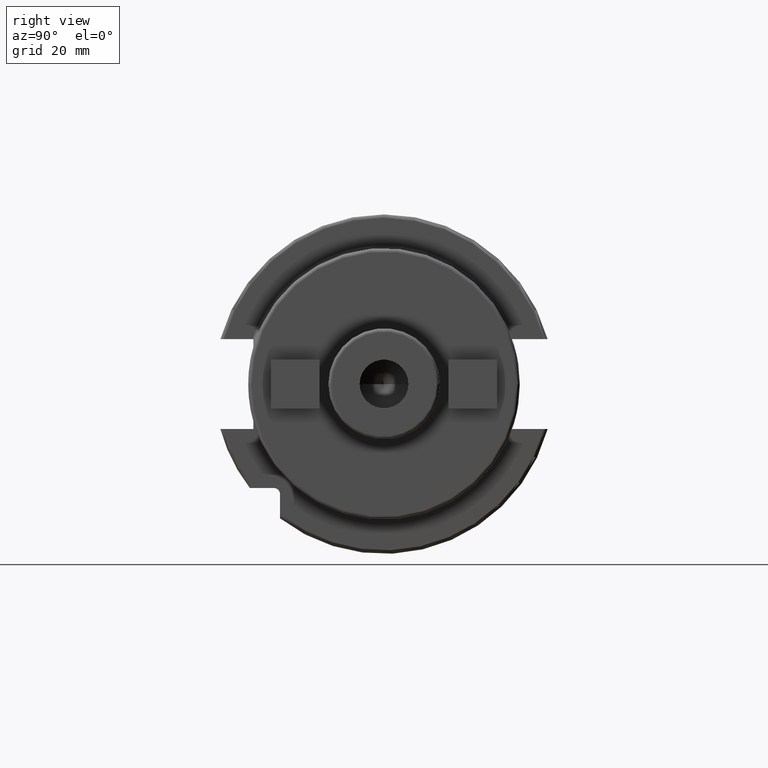
[diagram: clean part render]
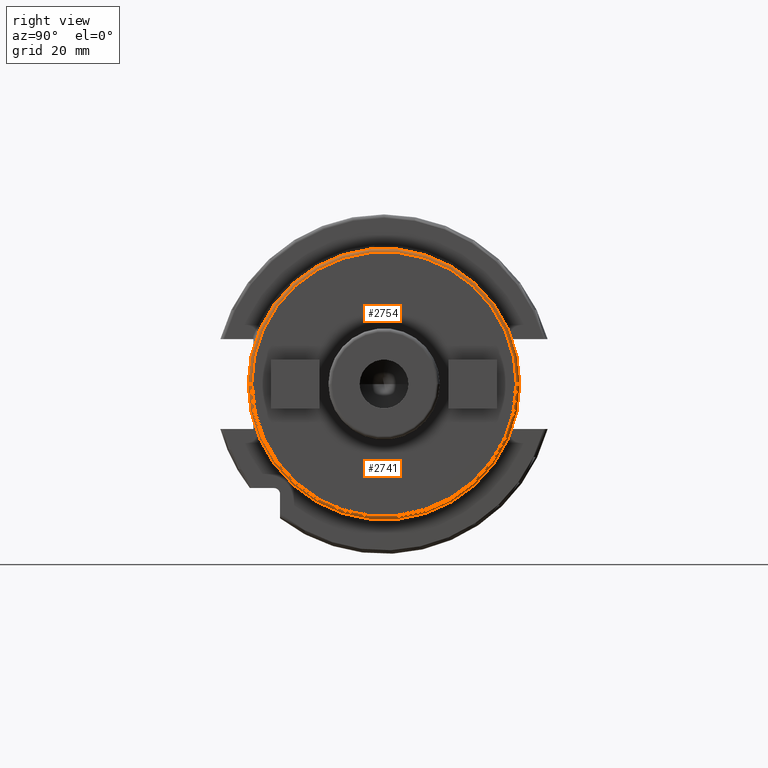
[diagram: same view with one multi-face feature highlighted, each face labeled with its STEP entity id]
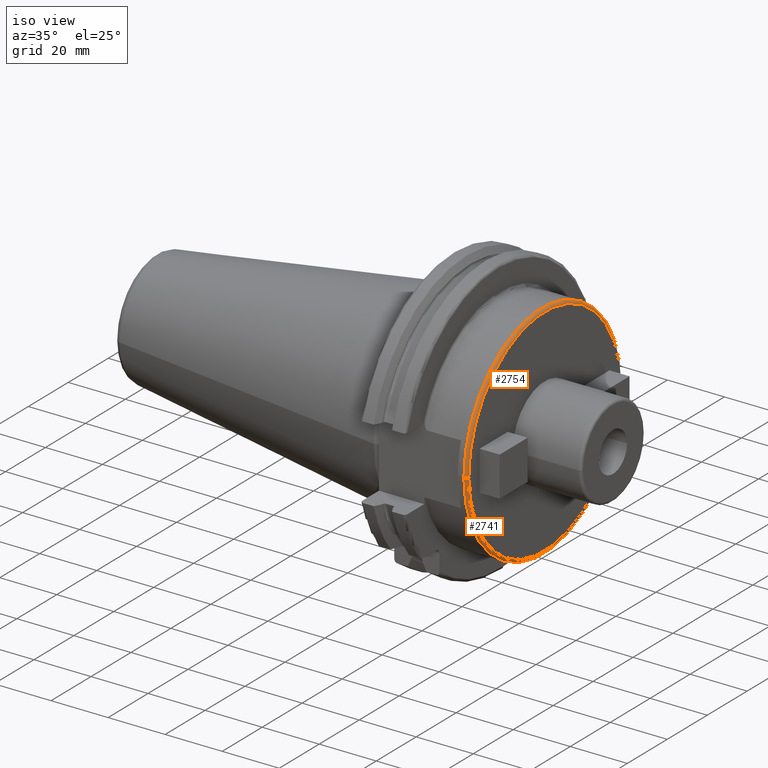
[diagram: same view with one multi-face feature highlighted, each face labeled with its STEP entity id]
A machine part, right view. The highlighted faces form ONE feature: a constant-radius fillet chain: 2 tangent blend faces with common blend radius 1 mm. The faces share edges in the B-rep.
A second angle (iso view) of the same feature is appended — it is thin or edge-on in the first view.
Their STEP definitions:
[1] entity #2754 (Torus):
#964=CARTESIAN_POINT('',(3.4E1,0.E0,0.E0));
#965=DIRECTION('',(-1.E0,0.E0,0.E0));
#966=DIRECTION('',(0.E0,-1.E0,0.E0));
#967=AXIS2_PLACEMENT_3D('',#964,#965,#966);
#1005=CARTESIAN_POINT('',(3.4E1,3.8E1,1.821318096340E-11));
#1006=DIRECTION('',(0.E0,4.792945554333E-13,-1.E0));
#1007=DIRECTION('',(0.E0,1.E0,4.792945554333E-13));
#1008=AXIS2_PLACEMENT_3D('',#1005,#1006,#1007);
#1010=CARTESIAN_POINT('',(3.4E1,-3.8E1,-1.820948947184E-11));
#1011=DIRECTION('',(0.E0,-4.791974109186E-13,1.E0));
#1012=DIRECTION('',(0.E0,-1.E0,-4.791974109186E-13));
#1013=AXIS2_PLACEMENT_3D('',#1010,#1011,#1012);
#1030=CARTESIAN_POINT('',(3.5E1,0.E0,0.E0));
#1031=DIRECTION('',(-1.E0,0.E0,0.E0));
#1032=DIRECTION('',(0.E0,-1.E0,0.E0));
#1033=AXIS2_PLACEMENT_3D('',#1030,#1031,#1032);
#1632=CARTESIAN_POINT('',(3.4E1,3.9E1,0.E0));
#1633=CARTESIAN_POINT('',(3.4E1,-3.9E1,0.E0));
#1634=VERTEX_POINT('',#1632);
#1635=VERTEX_POINT('',#1633);
#1636=CARTESIAN_POINT('',(3.5E1,3.8E1,0.E0));
#1637=CARTESIAN_POINT('',(3.5E1,-3.8E1,0.E0));
#1638=VERTEX_POINT('',#1636);
#1639=VERTEX_POINT('',#1637);
#2742=CARTESIAN_POINT('',(3.4E1,0.E0,0.E0));
#2743=DIRECTION('',(1.E0,0.E0,0.E0));
#2744=DIRECTION('',(0.E0,-9.999928138765E-1,-3.791067842024E-3));
#2745=AXIS2_PLACEMENT_3D('',#2742,#2743,#2744);
#2746=TOROIDAL_SURFACE('',#2745,3.8E1,1.E0);
#2747=ORIENTED_EDGE('',*,*,#2677,.T.);
#2748=ORIENTED_EDGE('',*,*,#2737,.T.);
#2750=ORIENTED_EDGE('',*,*,#2749,.F.);
#2751=ORIENTED_EDGE('',*,*,#2733,.F.);
#2752=EDGE_LOOP('',(#2747,#2748,#2750,#2751));
#2753=FACE_OUTER_BOUND('',#2752,.F.);
#2754=ADVANCED_FACE('',(#2753),#2746,.T.);
#968=CIRCLE('',#967,3.9E1);
#1009=CIRCLE('',#1008,1.E0);
#1014=CIRCLE('',#1013,1.E0);
#1034=CIRCLE('',#1033,3.8E1);
#2677=EDGE_CURVE('',#1635,#1634,#968,.T.);
#2733=EDGE_CURVE('',#1635,#1639,#1014,.T.);
#2737=EDGE_CURVE('',#1634,#1638,#1009,.T.);
#2749=EDGE_CURVE('',#1639,#1638,#1034,.T.);
[2] entity #2741 (Torus):
#987=CARTESIAN_POINT('',(3.4E1,0.E0,0.E0));
#988=DIRECTION('',(-1.E0,0.E0,0.E0));
#989=DIRECTION('',(0.E0,1.E0,0.E0));
#990=AXIS2_PLACEMENT_3D('',#987,#988,#989);
#1005=CARTESIAN_POINT('',(3.4E1,3.8E1,1.821318096340E-11));
#1006=DIRECTION('',(0.E0,4.792945554333E-13,-1.E0));
#1007=DIRECTION('',(0.E0,1.E0,4.792945554333E-13));
#1008=AXIS2_PLACEMENT_3D('',#1005,#1006,#1007);
#1010=CARTESIAN_POINT('',(3.4E1,-3.8E1,-1.820948947184E-11));
#1011=DIRECTION('',(0.E0,-4.791974109186E-13,1.E0));
#1012=DIRECTION('',(0.E0,-1.E0,-4.791974109186E-13));
#1013=AXIS2_PLACEMENT_3D('',#1010,#1011,#1012);
#1025=CARTESIAN_POINT('',(3.5E1,0.E0,0.E0));
#1026=DIRECTION('',(-1.E0,0.E0,0.E0));
#1027=DIRECTION('',(0.E0,1.E0,0.E0));
#1028=AXIS2_PLACEMENT_3D('',#1025,#1026,#1027);
#1632=CARTESIAN_POINT('',(3.4E1,3.9E1,0.E0));
#1633=CARTESIAN_POINT('',(3.4E1,-3.9E1,0.E0));
#1634=VERTEX_POINT('',#1632);
#1635=VERTEX_POINT('',#1633);
#1636=CARTESIAN_POINT('',(3.5E1,3.8E1,0.E0));
#1637=CARTESIAN_POINT('',(3.5E1,-3.8E1,0.E0));
#1638=VERTEX_POINT('',#1636);
#1639=VERTEX_POINT('',#1637);
#2727=CARTESIAN_POINT('',(3.4E1,0.E0,0.E0));
#2728=DIRECTION('',(1.E0,0.E0,0.E0));
#2729=DIRECTION('',(0.E0,9.999928138765E-1,3.791067842024E-3));
#2730=AXIS2_PLACEMENT_3D('',#2727,#2728,#2729);
#2731=TOROIDAL_SURFACE('',#2730,3.8E1,1.E0);
#2732=ORIENTED_EDGE('',*,*,#2707,.T.);
#2734=ORIENTED_EDGE('',*,*,#2733,.T.);
#2736=ORIENTED_EDGE('',*,*,#2735,.F.);
#2738=ORIENTED_EDGE('',*,*,#2737,.F.);
#2739=EDGE_LOOP('',(#2732,#2734,#2736,#2738));
#2740=FACE_OUTER_BOUND('',#2739,.F.);
#2741=ADVANCED_FACE('',(#2740),#2731,.T.);
#991=CIRCLE('',#990,3.9E1);
#1009=CIRCLE('',#1008,1.E0);
#1014=CIRCLE('',#1013,1.E0);
#1029=CIRCLE('',#1028,3.8E1);
#2707=EDGE_CURVE('',#1634,#1635,#991,.T.);
#2733=EDGE_CURVE('',#1635,#1639,#1014,.T.);
#2735=EDGE_CURVE('',#1638,#1639,#1029,.T.);
#2737=EDGE_CURVE('',#1634,#1638,#1009,.T.);